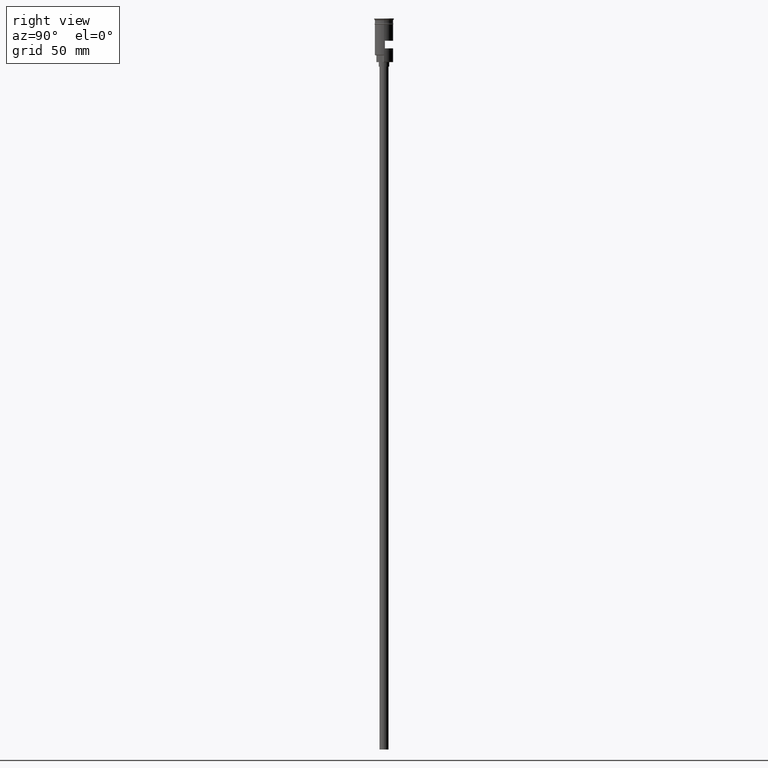
[diagram: clean part render]
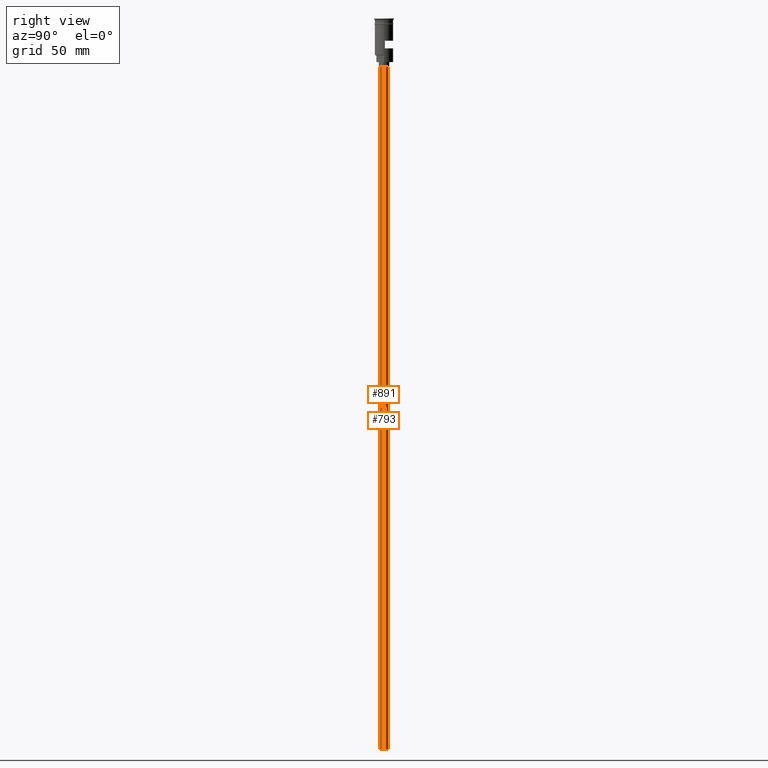
[diagram: same view with one multi-face feature highlighted, each face labeled with its STEP entity id]
A machine part, right view. The highlighted faces form ONE feature: a constant-radius fillet chain: 2 tangent blend faces with common blend radius 3 mm. The faces share edges in the B-rep.
Their STEP definitions:
[1] entity #793 (Cylinder):
#19 = DIRECTION ( 'NONE',  ( -0.000000000000000000, -0.000000000000000000, 1.000000000000000000 ) ) ;
#95 = DIRECTION ( 'NONE',  ( -1.000000000000000000, 0.000000000000000000, 0.000000000000000000 ) ) ;
#97 = CARTESIAN_POINT ( 'NONE',  ( 3.000000000000000444, 0.000000000000000000, -478.5000000000000568 ) ) ;
#109 = ORIENTED_EDGE ( 'NONE', *, *, #498, .T. ) ;
#219 = CARTESIAN_POINT ( 'NONE',  ( 0.000000000000000000, 0.000000000000000000, -31.50000000000000000 ) ) ;
#239 = CARTESIAN_POINT ( 'NONE',  ( 3.000000000000000444, 0.000000000000000000, -31.50000000000000000 ) ) ;
#472 = AXIS2_PLACEMENT_3D ( 'NONE', #1368, #19, #523 ) ;
#498 = EDGE_CURVE ( 'NONE', #1365, #584, #671, .T. ) ;
#523 = DIRECTION ( 'NONE',  ( 1.000000000000000000, 0.000000000000000000, 0.000000000000000000 ) ) ;
#538 = EDGE_CURVE ( 'NONE', #868, #1365, #1181, .T. ) ;
#584 = VERTEX_POINT ( 'NONE', #239 ) ;
#609 = DIRECTION ( 'NONE',  ( -0.000000000000000000, -0.000000000000000000, 1.000000000000000000 ) ) ;
#644 = FACE_OUTER_BOUND ( 'NONE', #1250, .T. ) ;
#654 = CIRCLE ( 'NONE', #1277, 3.000000000000000444 ) ;
#671 = CIRCLE ( 'NONE', #1407, 3.000000000000000444 ) ;
#696 = VECTOR ( 'NONE', #1210, 1000.000000000000000 ) ;
#739 = CYLINDRICAL_SURFACE ( 'NONE', #472, 3.000000000000000444 ) ;
#793 = ADVANCED_FACE ( 'NONE', ( #644 ), #739, .T. ) ;
#852 = DIRECTION ( 'NONE',  ( 0.000000000000000000, 0.000000000000000000, -1.000000000000000000 ) ) ;
#868 = VERTEX_POINT ( 'NONE', #1020 ) ;
#953 = DIRECTION ( 'NONE',  ( 0.000000000000000000, 0.000000000000000000, -1.000000000000000000 ) ) ;
#973 = CARTESIAN_POINT ( 'NONE',  ( 0.000000000000000000, 0.000000000000000000, -478.5000000000000568 ) ) ;
#992 = ORIENTED_EDGE ( 'NONE', *, *, #538, .T. ) ;
#1015 = ORIENTED_EDGE ( 'NONE', *, *, #1161, .F. ) ;
#1020 = CARTESIAN_POINT ( 'NONE',  ( -3.000000000000000444, 3.673940397442060361E-16, -478.5000000000000568 ) ) ;
#1029 = VECTOR ( 'NONE', #609, 1000.000000000000000 ) ;
#1080 = VERTEX_POINT ( 'NONE', #1122 ) ;
#1122 = CARTESIAN_POINT ( 'NONE',  ( 3.000000000000000444, 0.000000000000000000, -478.5000000000000568 ) ) ;
#1161 = EDGE_CURVE ( 'NONE', #868, #1080, #654, .T. ) ;
#1165 = ORIENTED_EDGE ( 'NONE', *, *, #1555, .F. ) ;
#1181 = LINE ( 'NONE', #1193, #696 ) ;
#1190 = LINE ( 'NONE', #97, #1029 ) ;
#1193 = CARTESIAN_POINT ( 'NONE',  ( -3.000000000000000444, 3.673940397442060361E-16, -478.5000000000000568 ) ) ;
#1201 = DIRECTION ( 'NONE',  ( -1.000000000000000000, 0.000000000000000000, 0.000000000000000000 ) ) ;
#1210 = DIRECTION ( 'NONE',  ( -0.000000000000000000, -0.000000000000000000, 1.000000000000000000 ) ) ;
#1250 = EDGE_LOOP ( 'NONE', ( #1015, #992, #109, #1165 ) ) ;
#1277 = AXIS2_PLACEMENT_3D ( 'NONE', #973, #852, #95 ) ;
#1308 = CARTESIAN_POINT ( 'NONE',  ( -3.000000000000000444, 3.673940397442060361E-16, -31.50000000000000000 ) ) ;
#1365 = VERTEX_POINT ( 'NONE', #1308 ) ;
#1368 = CARTESIAN_POINT ( 'NONE',  ( 0.000000000000000000, 0.000000000000000000, -478.5000000000000568 ) ) ;
#1407 = AXIS2_PLACEMENT_3D ( 'NONE', #219, #953, #1201 ) ;
#1555 = EDGE_CURVE ( 'NONE', #1080, #584, #1190, .T. ) ;
[2] entity #891 (Cylinder):
#67 = DIRECTION ( 'NONE',  ( 1.000000000000000000, 0.000000000000000000, 0.000000000000000000 ) ) ;
#97 = CARTESIAN_POINT ( 'NONE',  ( 3.000000000000000444, 0.000000000000000000, -478.5000000000000568 ) ) ;
#174 = CYLINDRICAL_SURFACE ( 'NONE', #726, 3.000000000000000444 ) ;
#197 = ORIENTED_EDGE ( 'NONE', *, *, #1555, .T. ) ;
#231 = DIRECTION ( 'NONE',  ( -0.000000000000000000, -0.000000000000000000, 1.000000000000000000 ) ) ;
#239 = CARTESIAN_POINT ( 'NONE',  ( 3.000000000000000444, 0.000000000000000000, -31.50000000000000000 ) ) ;
#319 = ORIENTED_EDGE ( 'NONE', *, *, #936, .T. ) ;
#361 = CARTESIAN_POINT ( 'NONE',  ( 0.000000000000000000, 0.000000000000000000, -31.50000000000000000 ) ) ;
#415 = EDGE_CURVE ( 'NONE', #1080, #868, #1462, .T. ) ;
#493 = DIRECTION ( 'NONE',  ( 0.000000000000000000, 0.000000000000000000, -1.000000000000000000 ) ) ;
#538 = EDGE_CURVE ( 'NONE', #868, #1365, #1181, .T. ) ;
#556 = ORIENTED_EDGE ( 'NONE', *, *, #538, .F. ) ;
#584 = VERTEX_POINT ( 'NONE', #239 ) ;
#587 = CARTESIAN_POINT ( 'NONE',  ( 0.000000000000000000, 0.000000000000000000, -478.5000000000000568 ) ) ;
#609 = DIRECTION ( 'NONE',  ( -0.000000000000000000, -0.000000000000000000, 1.000000000000000000 ) ) ;
#696 = VECTOR ( 'NONE', #1210, 1000.000000000000000 ) ;
#726 = AXIS2_PLACEMENT_3D ( 'NONE', #587, #231, #67 ) ;
#771 = EDGE_LOOP ( 'NONE', ( #556, #1039, #197, #319 ) ) ;
#868 = VERTEX_POINT ( 'NONE', #1020 ) ;
#891 = ADVANCED_FACE ( 'NONE', ( #1267 ), #174, .T. ) ;
#936 = EDGE_CURVE ( 'NONE', #584, #1365, #1010, .T. ) ;
#1010 = CIRCLE ( 'NONE', #1202, 3.000000000000000444 ) ;
#1020 = CARTESIAN_POINT ( 'NONE',  ( -3.000000000000000444, 3.673940397442060361E-16, -478.5000000000000568 ) ) ;
#1029 = VECTOR ( 'NONE', #609, 1000.000000000000000 ) ;
#1039 = ORIENTED_EDGE ( 'NONE', *, *, #415, .F. ) ;
#1080 = VERTEX_POINT ( 'NONE', #1122 ) ;
#1122 = CARTESIAN_POINT ( 'NONE',  ( 3.000000000000000444, 0.000000000000000000, -478.5000000000000568 ) ) ;
#1181 = LINE ( 'NONE', #1193, #696 ) ;
#1190 = LINE ( 'NONE', #97, #1029 ) ;
#1193 = CARTESIAN_POINT ( 'NONE',  ( -3.000000000000000444, 3.673940397442060361E-16, -478.5000000000000568 ) ) ;
#1202 = AXIS2_PLACEMENT_3D ( 'NONE', #361, #493, #1486 ) ;
#1210 = DIRECTION ( 'NONE',  ( -0.000000000000000000, -0.000000000000000000, 1.000000000000000000 ) ) ;
#1267 = FACE_OUTER_BOUND ( 'NONE', #771, .T. ) ;
#1269 = CARTESIAN_POINT ( 'NONE',  ( 0.000000000000000000, 0.000000000000000000, -478.5000000000000568 ) ) ;
#1308 = CARTESIAN_POINT ( 'NONE',  ( -3.000000000000000444, 3.673940397442060361E-16, -31.50000000000000000 ) ) ;
#1365 = VERTEX_POINT ( 'NONE', #1308 ) ;
#1462 = CIRCLE ( 'NONE', #1493, 3.000000000000000444 ) ;
#1486 = DIRECTION ( 'NONE',  ( -1.000000000000000000, 0.000000000000000000, 0.000000000000000000 ) ) ;
#1493 = AXIS2_PLACEMENT_3D ( 'NONE', #1269, #1514, #1532 ) ;
#1514 = DIRECTION ( 'NONE',  ( 0.000000000000000000, 0.000000000000000000, -1.000000000000000000 ) ) ;
#1532 = DIRECTION ( 'NONE',  ( -1.000000000000000000, 0.000000000000000000, 0.000000000000000000 ) ) ;
#1555 = EDGE_CURVE ( 'NONE', #1080, #584, #1190, .T. ) ;